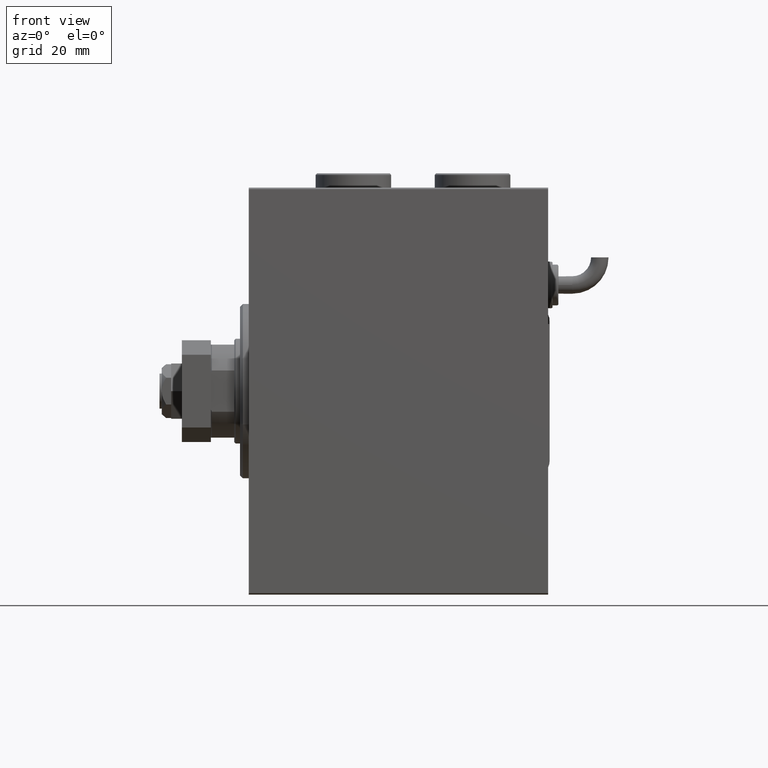
[diagram: clean part render]
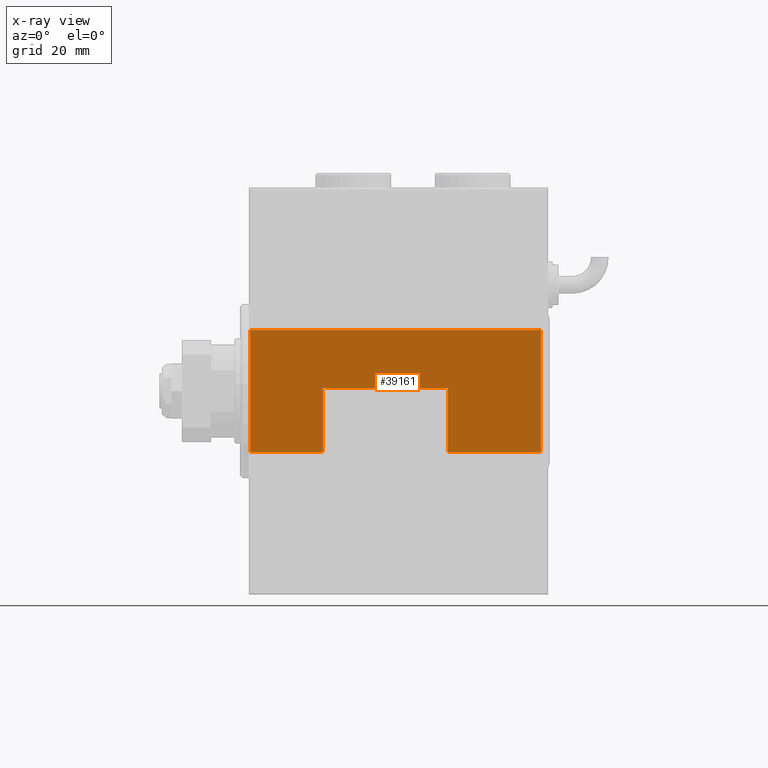
[diagram: x-ray — body ghosted, one internal face saturated and labeled with its STEP entity id]
A machine part, front view, then the same camera in x-ray: the body is ghosted and one INTERNAL B-rep face — a face not visible from any outside direction — is saturated and labeled: STEP entity #39161.
In plain terms, the highlighted planar face has unit normal (0, 1, -0).
Its self-contained STEP definition (entity closure, byte-faithful):
#457 = FACE_OUTER_BOUND ( 'NONE', #60760, .T. ) ;
#2473 = CARTESIAN_POINT ( 'NONE',  ( -20.99999999999999645, 22.79999999999999716, 78.00000000000000000 ) ) ;
#2585 = EDGE_CURVE ( 'NONE', #54215, #22494, #33377, .T. ) ;
#2753 = LINE ( 'NONE', #16911, #4928 ) ;
#3854 = DIRECTION ( 'NONE',  ( 0.000000000000000000, 1.000000000000000000, 0.000000000000000000 ) ) ;
#4255 = LINE ( 'NONE', #18425, #29547 ) ;
#4557 = DIRECTION ( 'NONE',  ( 0.000000000000000000, 0.000000000000000000, -1.000000000000000000 ) ) ;
#4928 = VECTOR ( 'NONE', #12581, 1000.000000000000000 ) ;
#5320 = EDGE_CURVE ( 'NONE', #10252, #8067, #28501, .T. ) ;
#7164 = CARTESIAN_POINT ( 'NONE',  ( 1.000000000000014655, 22.79999999999999716, 35.00000000000000000 ) ) ;
#7305 = EDGE_CURVE ( 'NONE', #27585, #31061, #44213, .T. ) ;
#7557 = DIRECTION ( 'NONE',  ( 0.000000000000000000, 0.000000000000000000, -1.000000000000000000 ) ) ;
#8067 = VERTEX_POINT ( 'NONE', #13157 ) ;
#8463 = CARTESIAN_POINT ( 'NONE',  ( -26.00000000000000000, 22.79999999999999716, 103.0000000000000000 ) ) ;
#8964 = EDGE_CURVE ( 'NONE', #28482, #8067, #33178, .T. ) ;
#10252 = VERTEX_POINT ( 'NONE', #37749 ) ;
#11112 = AXIS2_PLACEMENT_3D ( 'NONE', #8463, #3854, #41719 ) ;
#12171 = LINE ( 'NONE', #31566, #39931 ) ;
#12581 = DIRECTION ( 'NONE',  ( -1.000000000000000000, 0.000000000000000000, 0.000000000000000000 ) ) ;
#12843 = CARTESIAN_POINT ( 'NONE',  ( -20.99999999999999645, 22.79999999999999361, 3.000000000000002665 ) ) ;
#13000 = ORIENTED_EDGE ( 'NONE', *, *, #18471, .F. ) ;
#13157 = CARTESIAN_POINT ( 'NONE',  ( 20.99999999999998579, 22.79999999999999716, 103.0000000000000000 ) ) ;
#15305 = CARTESIAN_POINT ( 'NONE',  ( -26.00000000000000000, 22.79999999999999716, 103.0000000000000000 ) ) ;
#16347 = CARTESIAN_POINT ( 'NONE',  ( 1.000000000000014655, 22.79999999999999716, 78.00000000000000000 ) ) ;
#16911 = CARTESIAN_POINT ( 'NONE',  ( -26.00000000000000000, 22.79999999999999716, 35.00000000000000000 ) ) ;
#18393 = CARTESIAN_POINT ( 'NONE',  ( -26.00000000000000000, 22.79999999999999716, 78.00000000000000000 ) ) ;
#18425 = CARTESIAN_POINT ( 'NONE',  ( -20.99999999999999645, 22.79999999999999361, 0.000000000000000000 ) ) ;
#18471 = EDGE_CURVE ( 'NONE', #10252, #31061, #12171, .T. ) ;
#19576 = DIRECTION ( 'NONE',  ( -0.000000000000000000, -0.000000000000000000, 1.000000000000000000 ) ) ;
#20761 = EDGE_CURVE ( 'NONE', #37652, #22494, #41201, .T. ) ;
#22494 = VERTEX_POINT ( 'NONE', #16347 ) ;
#22674 = CARTESIAN_POINT ( 'NONE',  ( -20.99999999999999645, 22.79999999999999716, 35.00000000000000000 ) ) ;
#23533 = DIRECTION ( 'NONE',  ( 0.000000000000000000, -0.000000000000000000, 1.000000000000000000 ) ) ;
#26392 = VECTOR ( 'NONE', #19576, 1000.000000000000000 ) ;
#27585 = VERTEX_POINT ( 'NONE', #22674 ) ;
#28482 = VERTEX_POINT ( 'NONE', #60180 ) ;
#28501 = LINE ( 'NONE', #47317, #26392 ) ;
#29200 = ORIENTED_EDGE ( 'NONE', *, *, #5320, .T. ) ;
#29547 = VECTOR ( 'NONE', #4557, 1000.000000000000000 ) ;
#31061 = VERTEX_POINT ( 'NONE', #12843 ) ;
#31566 = CARTESIAN_POINT ( 'NONE',  ( -26.00000000000000000, 22.79999999999999716, 3.000000000000002665 ) ) ;
#31909 = ORIENTED_EDGE ( 'NONE', *, *, #33140, .T. ) ;
#33140 = EDGE_CURVE ( 'NONE', #54215, #27585, #2753, .T. ) ;
#33178 = LINE ( 'NONE', #15305, #42932 ) ;
#33283 = EDGE_CURVE ( 'NONE', #28482, #37652, #4255, .T. ) ;
#33377 = LINE ( 'NONE', #47267, #46935 ) ;
#33420 = ORIENTED_EDGE ( 'NONE', *, *, #8964, .F. ) ;
#36496 = PLANE ( 'NONE',  #11112 ) ;
#37652 = VERTEX_POINT ( 'NONE', #2473 ) ;
#37749 = CARTESIAN_POINT ( 'NONE',  ( 20.99999999999998579, 22.79999999999999716, 3.000000000000002665 ) ) ;
#39161 = ADVANCED_FACE ( 'NONE', ( #457 ), #36496, .F. ) ;
#39931 = VECTOR ( 'NONE', #59929, 1000.000000000000000 ) ;
#40716 = ORIENTED_EDGE ( 'NONE', *, *, #33283, .T. ) ;
#41201 = LINE ( 'NONE', #18393, #54806 ) ;
#41719 = DIRECTION ( 'NONE',  ( 0.000000000000000000, -0.000000000000000000, 1.000000000000000000 ) ) ;
#42932 = VECTOR ( 'NONE', #57527, 1000.000000000000000 ) ;
#44213 = LINE ( 'NONE', #49763, #57632 ) ;
#45483 = ORIENTED_EDGE ( 'NONE', *, *, #7305, .T. ) ;
#46437 = DIRECTION ( 'NONE',  ( 1.000000000000000000, -0.000000000000000000, 0.000000000000000000 ) ) ;
#46935 = VECTOR ( 'NONE', #23533, 1000.000000000000000 ) ;
#47267 = CARTESIAN_POINT ( 'NONE',  ( 1.000000000000014655, 22.79999999999999716, 103.0000000000000000 ) ) ;
#47317 = CARTESIAN_POINT ( 'NONE',  ( 20.99999999999999645, 22.79999999999999361, 103.0000000000000000 ) ) ;
#49763 = CARTESIAN_POINT ( 'NONE',  ( -20.99999999999999645, 22.79999999999999361, 0.000000000000000000 ) ) ;
#50728 = ORIENTED_EDGE ( 'NONE', *, *, #20761, .T. ) ;
#54215 = VERTEX_POINT ( 'NONE', #7164 ) ;
#54806 = VECTOR ( 'NONE', #46437, 1000.000000000000000 ) ;
#57527 = DIRECTION ( 'NONE',  ( 1.000000000000000000, 0.000000000000000000, 0.000000000000000000 ) ) ;
#57632 = VECTOR ( 'NONE', #7557, 1000.000000000000000 ) ;
#59215 = ORIENTED_EDGE ( 'NONE', *, *, #2585, .F. ) ;
#59929 = DIRECTION ( 'NONE',  ( -1.000000000000000000, 0.000000000000000000, 0.000000000000000000 ) ) ;
#60180 = CARTESIAN_POINT ( 'NONE',  ( -20.99999999999999645, 22.79999999999999716, 103.0000000000000000 ) ) ;
#60760 = EDGE_LOOP ( 'NONE', ( #59215, #31909, #45483, #13000, #29200, #33420, #40716, #50728 ) ) ;